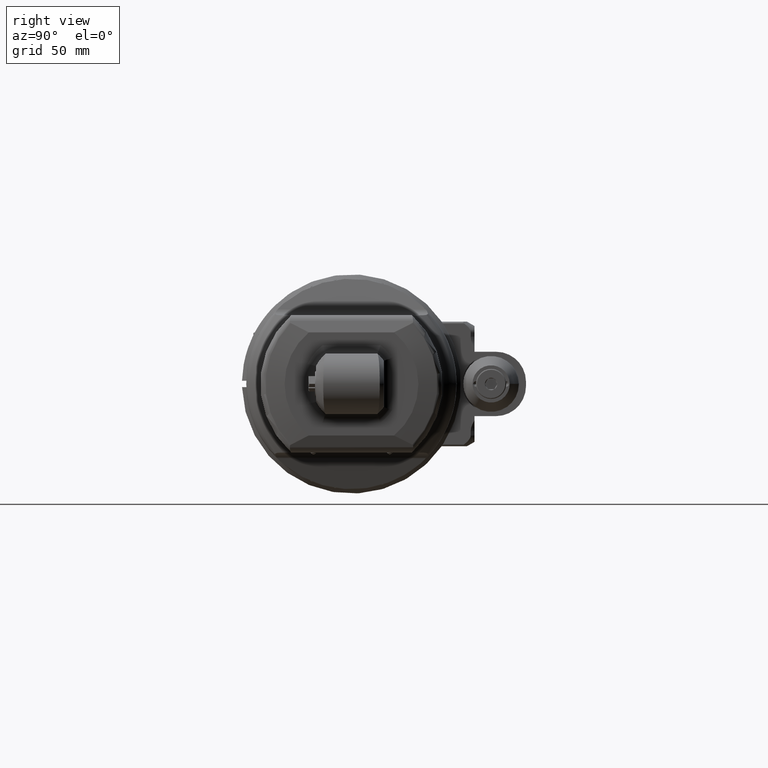
[diagram: clean part render]
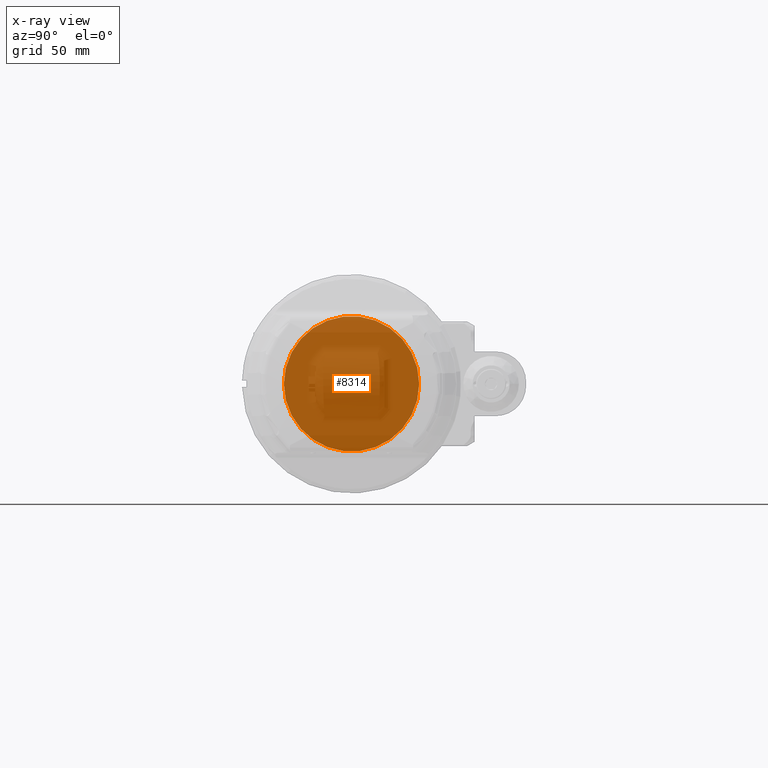
[diagram: x-ray — body ghosted, one internal face saturated and labeled with its STEP entity id]
A machine part, right view, then the same camera in x-ray: the body is ghosted and one INTERNAL B-rep face — a face not visible from any outside direction — is saturated and labeled: STEP entity #8314.
In plain terms, the highlighted planar face has unit normal (-1, -0, 0).
Its self-contained STEP definition (entity closure, byte-faithful):
#460=PLANE('',#9168);
#974=FACE_OUTER_BOUND('',#1520,.T.);
#1520=EDGE_LOOP('',(#7239));
#1943=CIRCLE('',#9167,1.24015748031496);
#3978=VERTEX_POINT('',#44989);
#5105=EDGE_CURVE('',#3978,#3978,#1943,.T.);
#7239=ORIENTED_EDGE('',*,*,#5105,.T.);
#8314=ADVANCED_FACE('',(#974),#460,.T.);
#9167=AXIS2_PLACEMENT_3D('',#44991,#11140,#11141);
#9168=AXIS2_PLACEMENT_3D('',#44992,#11142,#11143);
#11140=DIRECTION('center_axis',(-1.,0.,0.));
#11141=DIRECTION('ref_axis',(0.,1.,0.));
#11142=DIRECTION('center_axis',(-1.,0.,0.));
#11143=DIRECTION('ref_axis',(0.,-1.,0.));
#44989=CARTESIAN_POINT('',(-1.73228346456693,1.24015748031496,0.));
#44991=CARTESIAN_POINT('Origin',(-1.73228346456693,0.,0.));
#44992=CARTESIAN_POINT('Origin',(-1.73228346456693,0.,0.));